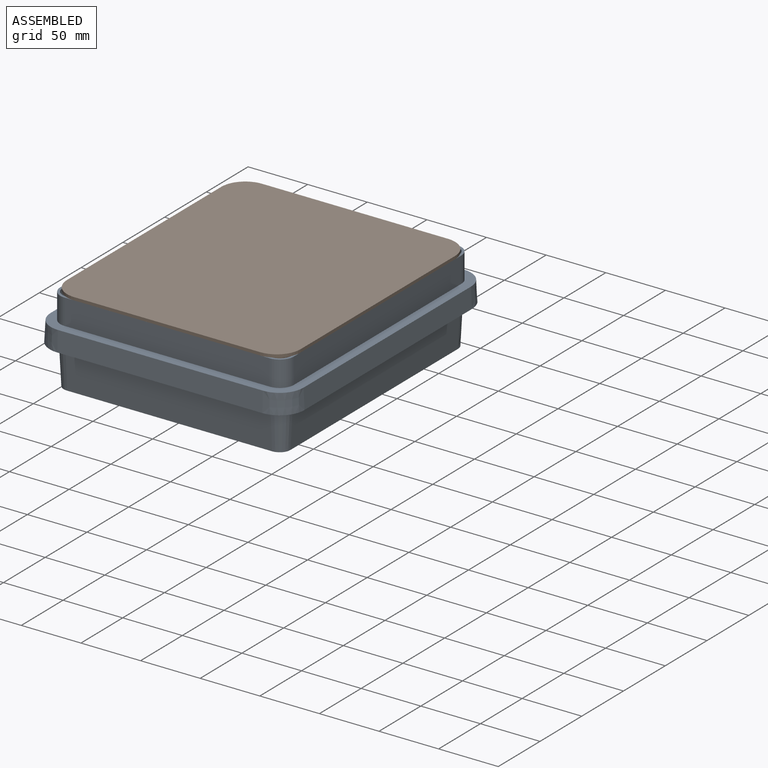
[diagram: assembled view]
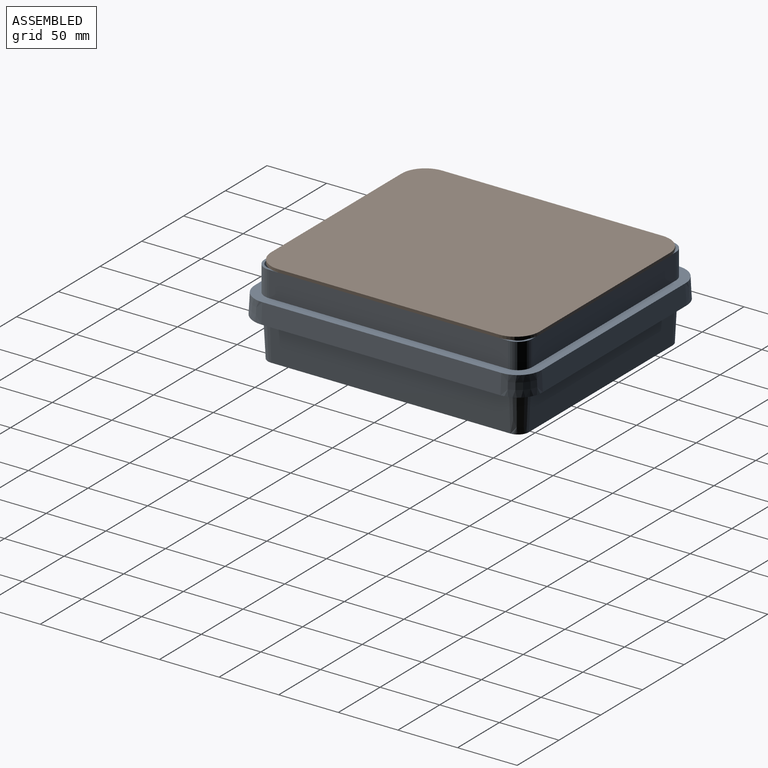
[diagram: assembled view, second angle]
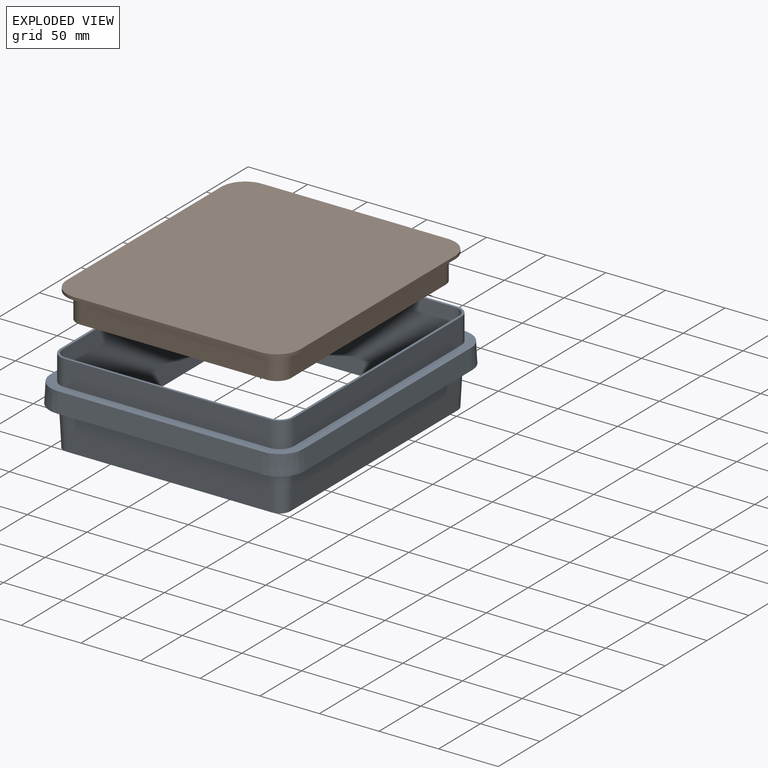
[diagram: exploded view]
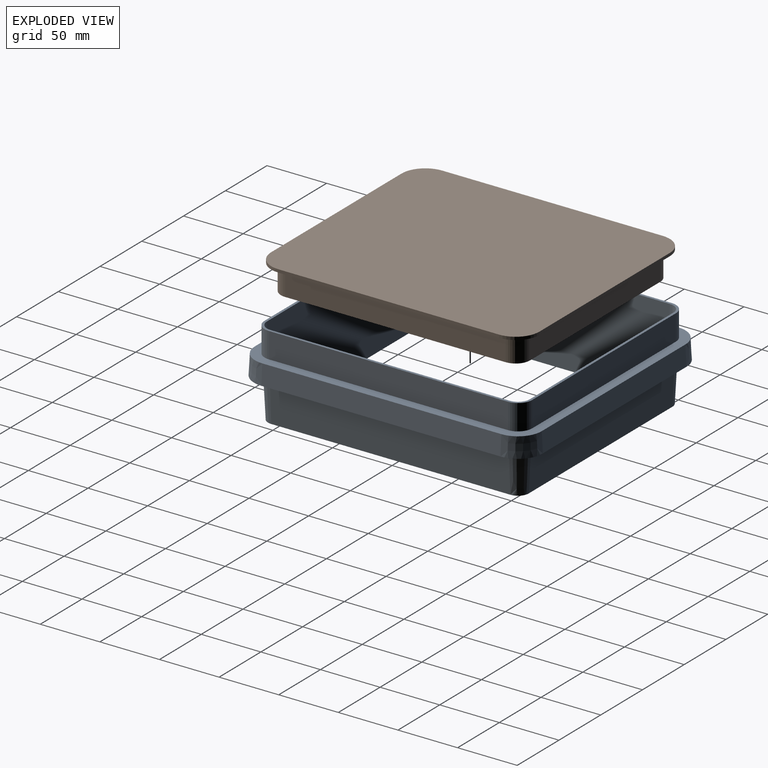
[diagram: exploded view, second angle]
ASSEMBLY  parts=2 mates=3
PART A: 36 faces, bbox 213.8x242.3x71.6 mm
  f0: cone r=7.12mm half-angle=2.3deg, axis (0,0,1), area 963.8mm2, adj f4,f28,f29,f35
  f1: cone r=10.88mm half-angle=3deg, axis (0,0,1), area 525.4mm2, adj f5,f29,f30,f31
  f2: cone r=20mm half-angle=3deg, axis (0,0,-1), area 536.9mm2, adj f6,f31,f32,f33
  f3: cylinder r=12mm len=21.5mm, axis (0,0,1), area 405.3mm2, adj f7,f33,f34,f35
  f4: plane 172x71.6mm, normal (0,-1,0.04), area 12325.1mm2, adj f0,f8,f29,f35
  f5: plane 172x33.4mm, normal (0,1,-0.05), area 5752.7mm2, adj f1,f9,f29,f31
  f6: plane 172x16.7mm, normal (0,1,0.05), area 2876.3mm2, adj f2,f10,f31,f33
  f7: plane 172x21.5mm, normal (0,1,0), area 3698mm2, adj f3,f11,f33,f35
  f8: cone r=7.12mm half-angle=2.3deg, axis (0,0,1), area 963.8mm2, adj f4,f12,f29,f35
  f9: cone r=10.88mm half-angle=3deg, axis (0,0,1), area 525.4mm2, adj f5,f13,f29,f31
  f10: cone r=20mm half-angle=3deg, axis (0,0,-1), area 536.9mm2, adj f6,f14,f31,f33
  f11: cylinder r=12mm len=21.5mm, axis (0,0,1), area 405.3mm2, adj f7,f15,f33,f35
  f12: plane 200.5x71.6mm, normal (-1,0,0.04), area 14367.4mm2, adj f8,f16,f29,f35
  f13: plane 200.5x33.4mm, normal (1,0,-0.05), area 6705.9mm2, adj f9,f17,f29,f31
  f14: plane 200.5x16.7mm, normal (1,0,0.05), area 3352.9mm2, adj f10,f18,f31,f33
  f15: plane 200.5x21.5mm, normal (1,0,0), area 4310.8mm2, adj f11,f19,f33,f35
  f16: cone r=7.12mm half-angle=2.3deg, axis (0,0,1), area 963.8mm2, adj f12,f20,f29,f35
  f17: cone r=10.88mm half-angle=3deg, axis (0,0,1), area 525.4mm2, adj f13,f21,f29,f31
  f18: cone r=20mm half-angle=3deg, axis (0,0,-1), area 536.9mm2, adj f14,f22,f31,f33
  f19: cylinder r=12mm len=21.5mm, axis (0,0,1), area 405.3mm2, adj f15,f23,f33,f35
  f20: plane 172x71.6mm, normal (0,1,0.04), area 12325.1mm2, adj f16,f24,f29,f35
  f21: plane 172x33.4mm, normal (0,-1,-0.05), area 5752.7mm2, adj f17,f25,f29,f31
  f22: plane 172x16.7mm, normal (0,-1,0.05), area 2876.3mm2, adj f18,f26,f31,f33
  f23: plane 172x21.5mm, normal (0,-1,0), area 3698mm2, adj f19,f27,f33,f35
  f24: cone r=7.12mm half-angle=2.3deg, axis (0,0,1), area 963.8mm2, adj f20,f28,f29,f35
  f25: cone r=10.88mm half-angle=3deg, axis (0,0,1), area 525.4mm2, adj f21,f29,f30,f31
  f26: cone r=20mm half-angle=3deg, axis (0,0,-1), area 536.9mm2, adj f22,f31,f32,f33
  f27: cylinder r=12mm len=21.5mm, axis (0,0,1), area 405.3mm2, adj f23,f33,f34,f35
  f28: plane 200.5x71.6mm, normal (1,0,0.04), area 14367.4mm2, adj f0,f24,f29,f35
  f29: plane 218.75x190.25mm, normal (0,0,-1), area 1592.1mm2, adj f0,f1,f4,f5,f8,f9,f12,f13
  f30: plane 200.5x33.4mm, normal (-1,0,-0.05), area 6705.9mm2, adj f1,f25,f29,f31
  f31: plane 242.25x213.75mm, normal (0,0,-1), area 8447.5mm2, adj f1,f2,f5,f6,f9,f10,f13,f14
  f32: plane 200.5x16.7mm, normal (-1,0,0.05), area 3352.9mm2, adj f2,f26,f31,f33
  f33: plane 240.5x212mm, normal (0,0,1), area 6764.2mm2, adj f2,f3,f6,f7,f10,f11,f14,f15
  f34: plane 200.5x21.5mm, normal (-1,0,0), area 4310.8mm2, adj f3,f27,f33,f35
  f35: plane 224.5x196mm, normal (0,0,1), area 1628.2mm2, adj f0,f3,f4,f7,f8,f11,f12,f15
PART B: 28 faces, bbox 196x225x24 mm
  f0: plane 185x2.5mm, normal (1,0,0), area 462.5mm2, adj f1,f7,f8,f9
  f1: cylinder r=20mm len=20mm, axis (0,0,-1), area 78.5mm2, adj f0,f2,f8,f9
  f2: plane 156x2.5mm, normal (0,1,0), area 390mm2, adj f1,f3,f8,f9
  f3: cylinder r=20mm len=20mm, axis (0,0,-1), area 78.5mm2, adj f2,f4,f8,f9
  f4: plane 185x2.5mm, normal (-1,0,0), area 462.5mm2, adj f3,f5,f8,f9
  f5: cylinder r=20mm len=20mm, axis (0,0,-1), area 78.5mm2, adj f4,f6,f8,f9
  f6: plane 156x2.5mm, normal (0,-1,0), area 390mm2, adj f5,f7,f8,f9
  f7: cylinder r=20mm len=20mm, axis (0,0,-1), area 78.5mm2, adj f0,f6,f8,f9
  f8: plane 225x196mm, normal (0,0,1), area 6260.2mm2, adj f0,f1,f2,f3,f4,f5,f6,f7
  f9: plane 225x196mm, normal (0,0,-1), area 43756.6mm2, adj f0,f1,f2,f3,f4,f5,f6,f7
  f10: cylinder r=12mm len=21.5mm, axis (0,0,-1), area 405.3mm2, adj f8,f11,f25,f26
  f11: plane 156x21.5mm, normal (0,-1,0), area 3354mm2, adj f8,f10,f12,f26
  f12: cylinder r=12mm len=21.5mm, axis (0,0,-1), area 405.3mm2, adj f8,f11,f13,f26
  f13: plane 185x21.5mm, normal (1,0,0), area 3977.5mm2, adj f8,f12,f14,f26
  f14: cylinder r=12mm len=21.5mm, axis (0,0,-1), area 405.3mm2, adj f8,f13,f15,f26
  f15: plane 156x21.5mm, normal (0,1,0), area 3354mm2, adj f8,f14,f16,f26
  f16: cylinder r=12mm len=21.5mm, axis (0,0,-1), area 405.3mm2, adj f8,f15,f25,f26
  f17: cylinder r=10mm len=21.5mm, axis (0,0,-1), area 337.7mm2, adj f18,f24,f26,f27
  f18: plane 185x21.5mm, normal (1,0,0), area 3977.5mm2, adj f17,f19,f26,f27
  f19: cylinder r=10mm len=21.5mm, axis (0,0,-1), area 337.7mm2, adj f18,f20,f26,f27
  f20: plane 156x21.5mm, normal (0,-1,0), area 3354mm2, adj f19,f21,f26,f27
  f21: cylinder r=10mm len=21.5mm, axis (0,0,-1), area 337.7mm2, adj f20,f22,f26,f27
  f22: plane 185x21.5mm, normal (-1,0,0), area 3977.5mm2, adj f21,f23,f26,f27
  f23: cylinder r=10mm len=21.5mm, axis (0,0,-1), area 337.7mm2, adj f22,f24,f26,f27
  f24: plane 156x21.5mm, normal (0,1,0), area 3354mm2, adj f17,f23,f26,f27
  f25: plane 185x21.5mm, normal (-1,0,0), area 3977.5mm2, adj f8,f10,f16,f26
  f26: plane 209x180mm, normal (0,0,1), area 1502.2mm2, adj f10,f11,f12,f13,f14,f15,f16,f17
  f27: plane 205x176mm, normal (0,0,1), area 35994.2mm2, adj f17,f18,f19,f20,f21,f22,f23,f24
PLACE A t=(0,0,64.36)mm fixed
PLACE B rot(axis=(1,0,0),180deg) t=(106,-100,105.06)mm
MATE planar B.f4 <-> A.f34  axis (-1,0,0) through (8,-100,103.81)mm
MATE planar B.f27 <-> A.f35  axis (0,0,-1) through (106,-100,102.56)mm
MATE planar B.f2 <-> A.f23  axis (0,-1,0) through (106,-212.5,103.81)mm
